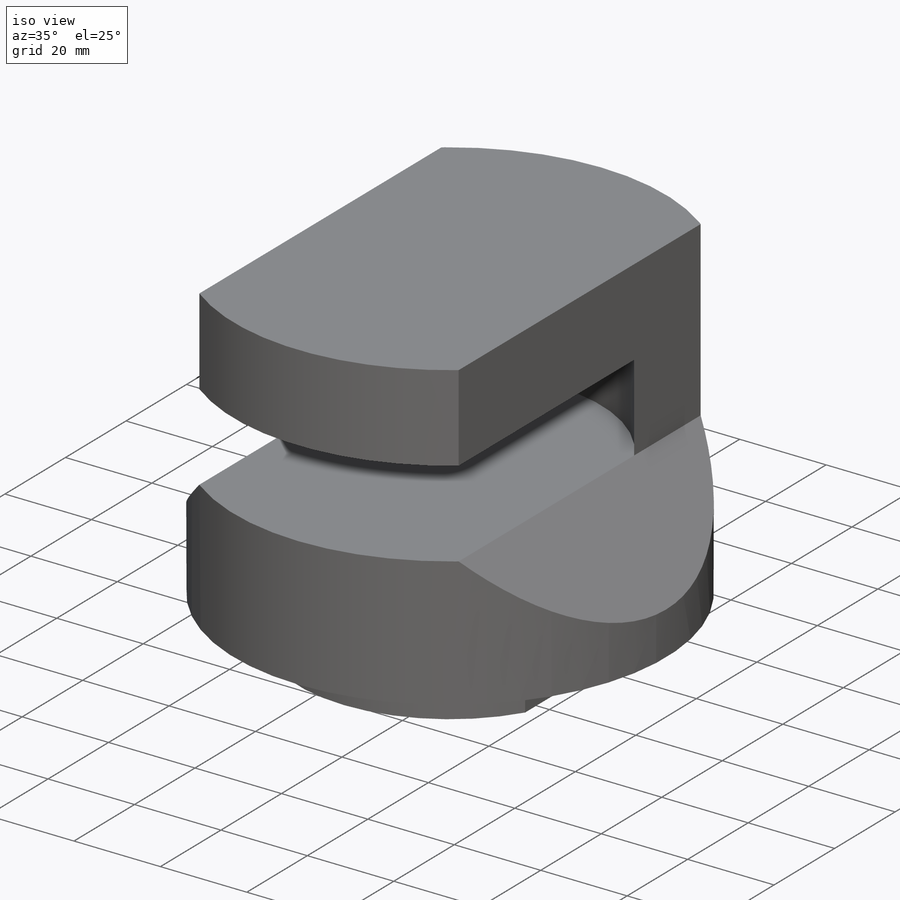
[diagram: iso view]
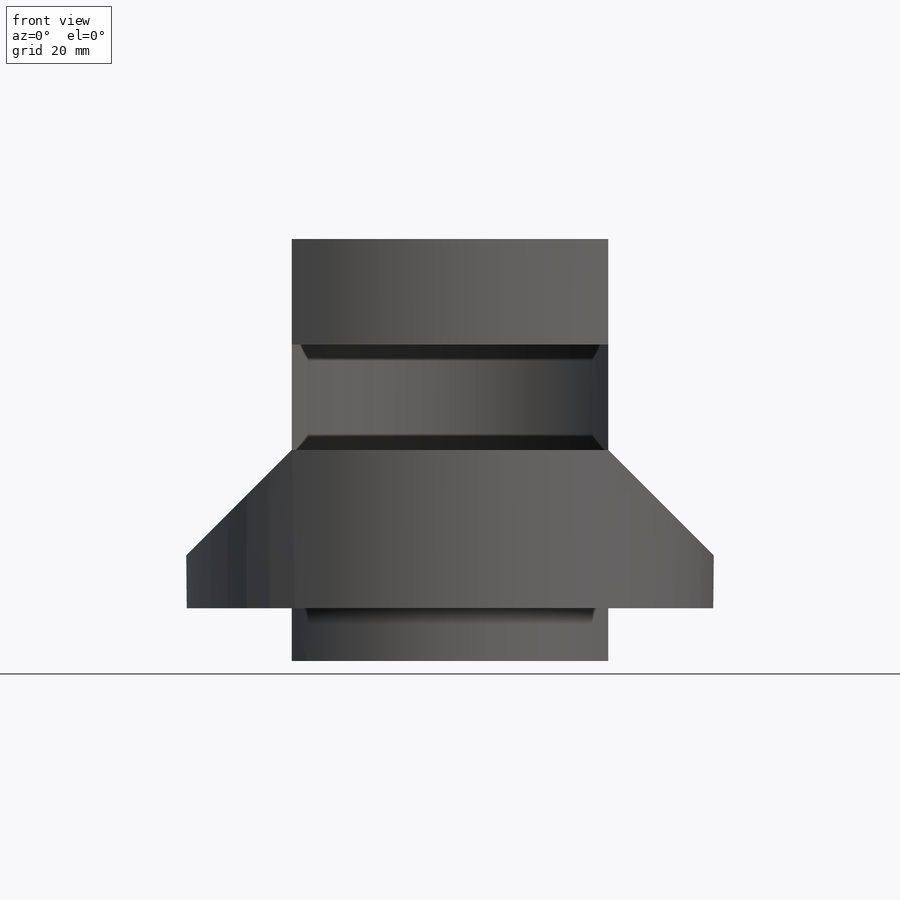
[diagram: front view]
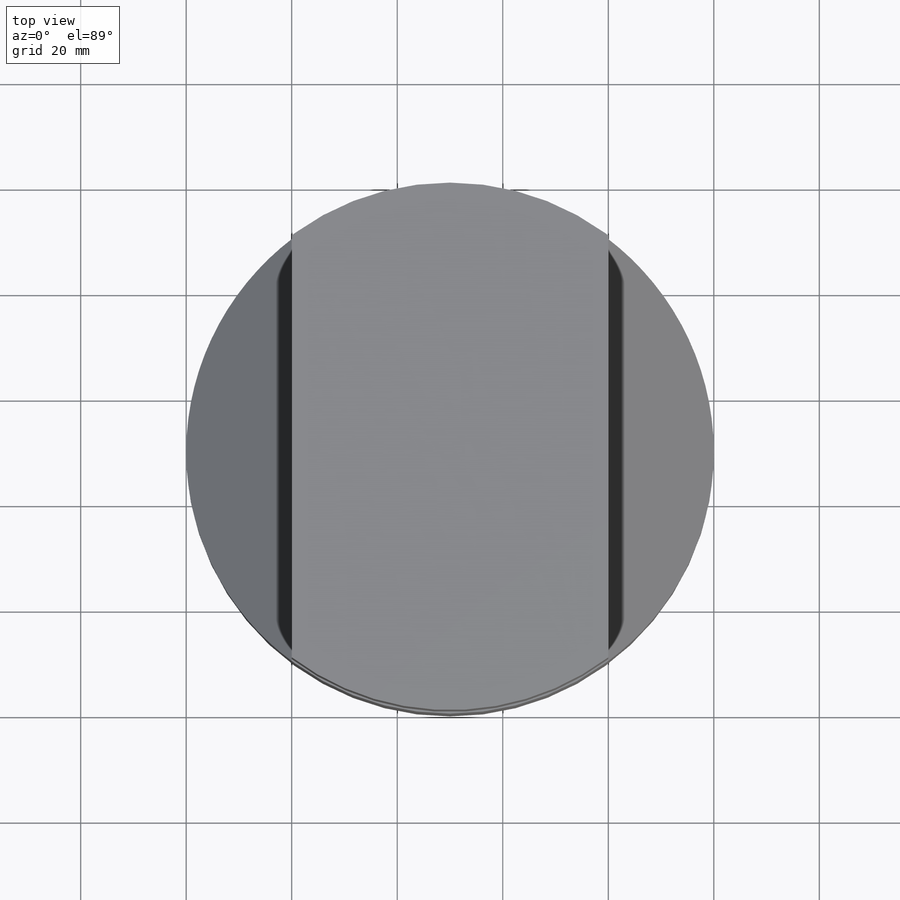
[diagram: top view]
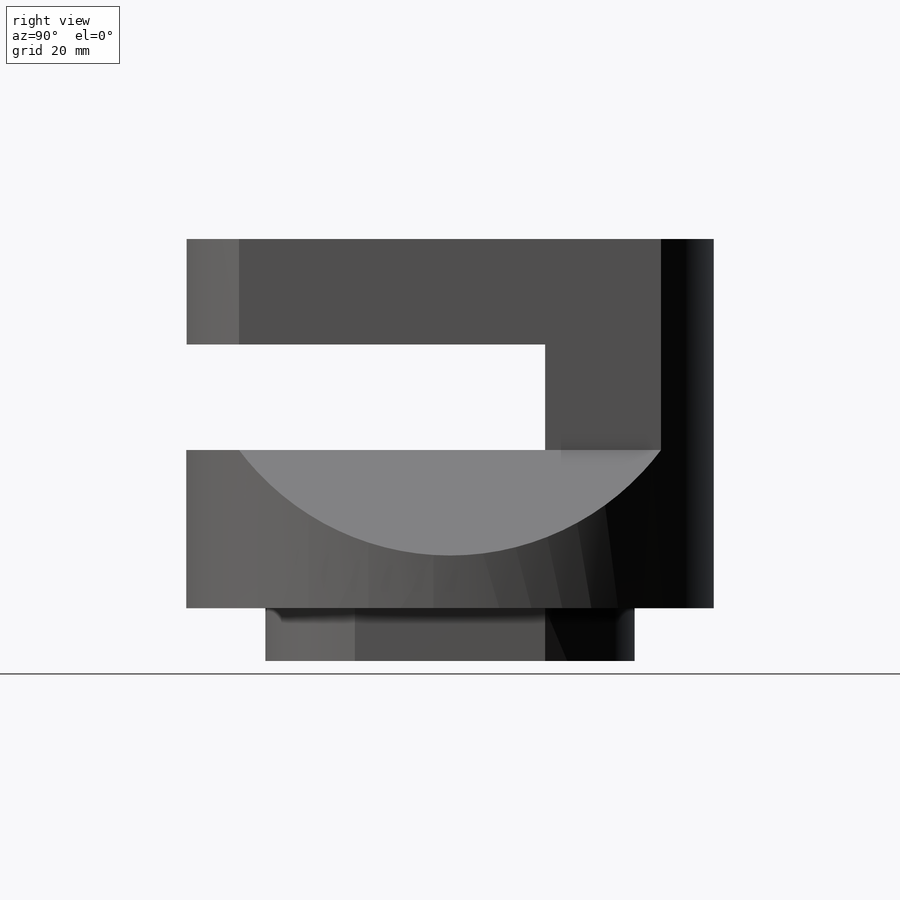
[diagram: right view]
SOLIDWORKS PART (.sldprt)
format: sldprt  version: not decoded by parser v0  size: 299,520 bytes
history: native  units: mm
features: sketch x8, cut_extrude x6, plane x3, extrude x2, material x1 (+13 scaffold rows collapsed)
feature tree (33):
  scaffold x13  (default folders/planes/origin — collapsed)
  material  "Material <not specified>"
  sketch  "Sketch1"  dims[D1=100.0mm D2=80.0mm]
  extrude  "Boss-Extrude2"  Depth=100mm
  sketch  "Sketch2"  dims[D1=20.0mm D2=10.0mm D3=20.0mm D4=10.0mm D5=20.0mm D6=10.0mm D7=40.0mm D8=40.0mm D9=20.0mm D10=10.0mm]
  cut_extrude  "Cut-Extrude1"  Depth=100mm
  plane  "Plane1"  Offset=80mm
  sketch  "Sketch3"  dims[D1=100.0mm D2=50.0mm D3=50.0mm D4=100.0mm D5=50.0mm D6=50.0mm]
  cut_extrude  "Cut-Extrude2"  Depth=100mm
  sketch  "Sketch4"  dims[D1=15.0mm D2=10.0mm D3=15.0mm D4=0.0mm D5=10.0mm D6=0.0mm]
  cut_extrude  "Cut-Extrude5"  Depth=100mm
  plane  "Plane3"  Offset=60mm
  sketch  "Sketch7"  dims[D1=70.0mm]
  cut_extrude  "Cut-Extrude16"  Depth=20mm
  sketch  "Sketch8"  dims[D1=70.0mm D2=50.0mm D3=0.0mm D4=30.0mm D5=60.0mm]
  extrude  "Boss-Extrude3"  Depth=40mm
  sketch  "Sketch9"  dims[D1=70.0mm]
  cut_extrude  "Cut-Extrude17"  Depth=10mm
  plane  "Plane10"  Offset=50mm
  sketch  "Sketch18"  dims[c1.D1=~21.955569mm c1.D2=~73.850077mm c2.D1=60.0mm c2.D2=20.0mm c2.D3=0.0mm c2.D4=0.0mm]
  cut_extrude  "Cut-Extrude22"  Depth=75mm
decode coverage: 16 of 16 modeling features carry decoded parameters
note: ~ marks probable driven/reference dimensions
note: suppression state not decoded; provenance and decode notes live in map.json
